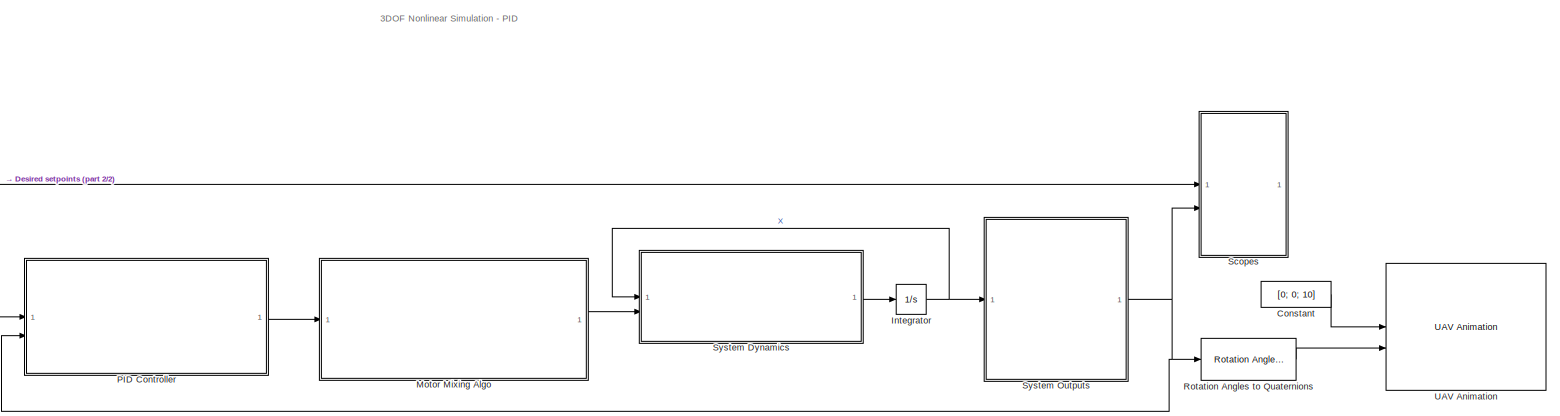
[diagram: root canvas - part 1/2, most of the canvas]
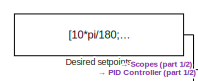
[diagram: root canvas - part 2/2, middle left region]
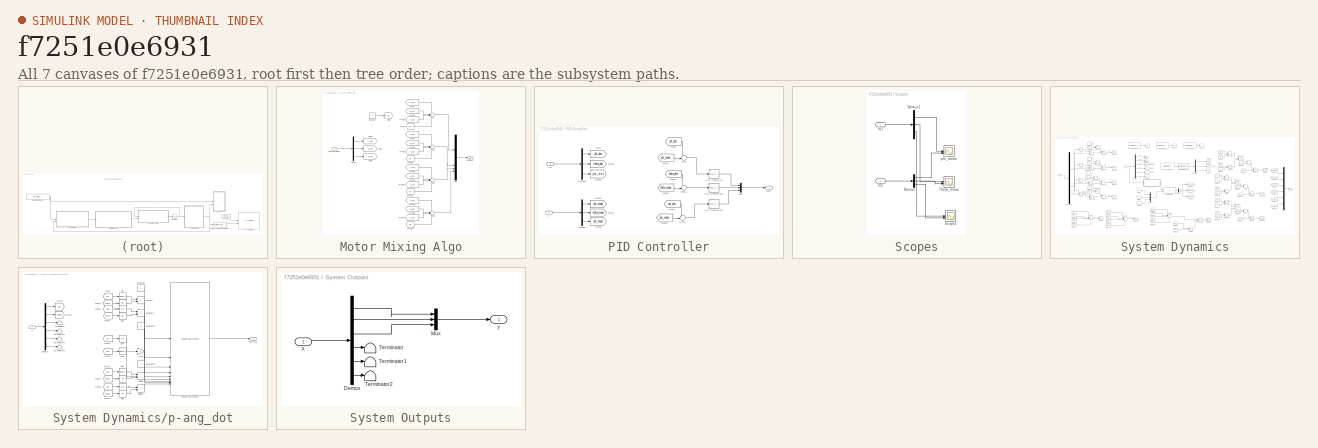
[diagram: thumbnail index - all 7 canvases of the model, root first then tree order]
MODEL slx_f7251e0e6931
KIND model
CONFIG AbsTol = auto
CONFIG EnableMultiTasking = on
CONFIG FixedStep = 0.001
CONFIG MaxStep = auto
CONFIG MinStep = auto
CONFIG RelTol = 1e-3
CONFIG SampleTimeConstraint = Unconstrained
CONFIG SolverName = ode1
CONFIG StartTime = 0.0
CONFIG StopTime = 30
BLOCK [Constant] Constant
  Value = [0; 0; 10]
BLOCK [Constant] Desired setpoints
  Value = [10*pi/180; 10*pi/180; 10*pi/180]
BLOCK [Integrator] Integrator
  InitialCondition = [0;0;0;0;0;0]
BLOCK [SubSystem] Motor Mixing Algo
BLOCK [Constant] Motor Mixing Algo/Constant
  Value = 0
BLOCK [Inport] Motor Mixing Algo/Controller Output
BLOCK [Demux] Motor Mixing Algo/Demux
  Outputs = 3
BLOCK [From] Motor Mixing Algo/From
  GotoTag = r_cnt
BLOCK [From] Motor Mixing Algo/From1
  GotoTag = p_cnt
BLOCK [From] Motor Mixing Algo/From10
  GotoTag = y_cnt
BLOCK [From] Motor Mixing Algo/From11
  GotoTag = uff
BLOCK [From] Motor Mixing Algo/From12
  GotoTag = y_cnt
BLOCK [From] Motor Mixing Algo/From13
  GotoTag = uff
BLOCK [From] Motor Mixing Algo/From14
  GotoTag = r_cnt
BLOCK [From] Motor Mixing Algo/From15
  GotoTag = p_cnt
BLOCK [From] Motor Mixing Algo/From2
  GotoTag = y_cnt
BLOCK [From] Motor Mixing Algo/From3
  GotoTag = uff
BLOCK [From] Motor Mixing Algo/From4
  GotoTag = r_cnt
BLOCK [From] Motor Mixing Algo/From5
  GotoTag = p_cnt
BLOCK [From] Motor Mixing Algo/From6
  GotoTag = y_cnt
BLOCK [From] Motor Mixing Algo/From7
  GotoTag = uff
BLOCK [From] Motor Mixing Algo/From8
  GotoTag = r_cnt
BLOCK [From] Motor Mixing Algo/From9
  GotoTag = p_cnt
BLOCK [Goto] Motor Mixing Algo/Goto
  GotoTag = uff
BLOCK [Goto] Motor Mixing Algo/Goto1
  GotoTag = r_cnt
BLOCK [Goto] Motor Mixing Algo/Goto2
  GotoTag = p_cnt
BLOCK [Goto] Motor Mixing Algo/Goto3
  GotoTag = y_cnt
BLOCK [Mux] Motor Mixing Algo/Mux
  DisplayOption = bar
BLOCK [Sum] Motor Mixing Algo/Sum
  Inputs = ++++
BLOCK [Sum] Motor Mixing Algo/Sum1
  Inputs = -+-+
BLOCK [Sum] Motor Mixing Algo/Sum2
  Inputs = --++
BLOCK [Sum] Motor Mixing Algo/Sum3
  Inputs = +--+
BLOCK [Outport] Motor Mixing Algo/plant input
BLOCK [SubSystem] PID Controller
BLOCK [Demux] PID Controller/Demux
  Outputs = 3
BLOCK [Demux] PID Controller/Demux1
  Outputs = 3
BLOCK [From] PID Controller/From
  GotoTag = phi_des
BLOCK [From] PID Controller/From1
  GotoTag = phi_meas
BLOCK [From] PID Controller/From2
  GotoTag = theta_des
BLOCK [From] PID Controller/From3
  GotoTag = theta_meas
BLOCK [From] PID Controller/From4
  GotoTag = psi_des
BLOCK [From] PID Controller/From5
  GotoTag = psi_meas
BLOCK [Goto] PID Controller/Goto
  GotoTag = phi_des
BLOCK [Goto] PID Controller/Goto1
  GotoTag = theta_des
BLOCK [Goto] PID Controller/Goto2
  GotoTag = psi_des
BLOCK [Goto] PID Controller/Goto3
  GotoTag = phi_meas
BLOCK [Goto] PID Controller/Goto4
  GotoTag = theta_meas
BLOCK [Goto] PID Controller/Goto5
  GotoTag = psi_meas
BLOCK [Mux] PID Controller/Mux
  DisplayOption = bar
  Inputs = 3
BLOCK [Outport] PID Controller/Out1
BLOCK [Reference] PID Controller/PID Controller  REF=slpidlib/PID Controller
  LibrarySourceBlock = simulink/Continuous/PID Controller
  SourceBlock = slpidlib/PID Controller
  SourceType = PID 1dof
BLOCK [Reference] PID Controller/PID Controller1  REF=slpidlib/PID Controller
  LibrarySourceBlock = simulink/Continuous/PID Controller
  SourceBlock = slpidlib/PID Controller
  SourceType = PID 1dof
BLOCK [Reference] PID Controller/PID Controller2  REF=slpidlib/PID Controller
  LibrarySourceBlock = simulink/Continuous/PID Controller
  SourceBlock = slpidlib/PID Controller
  SourceType = PID 1dof
BLOCK [Sum] PID Controller/Sum
  Inputs = +-|
BLOCK [Sum] PID Controller/Sum1
  Inputs = +-|
BLOCK [Sum] PID Controller/Sum2
  Inputs = +-|
BLOCK [Inport] PID Controller/Xd
BLOCK [Inport] PID Controller/y
  Port = 2
BLOCK [Reference] Rotation Angles to Quaternions  REF=sharedtransform/Rotation Angles to Quaternions
  AttributesFormatString = Rotation Order: %<rotationOrder>
  LibrarySourceBlock = aerolibtransform2/Rotation Angles to Quaternions
  SourceBlock = sharedtransform/Rotation Angles to Quaternions
  SourceType = Ang2Quat
BLOCK [SubSystem] Scopes
BLOCK [Demux] Scopes/Demux
  Outputs = 3
BLOCK [Demux] Scopes/Demux1
  Outputs = 3
BLOCK [Inport] Scopes/In1
BLOCK [Inport] Scopes/In2
  Port = 2
BLOCK [Scope] Scopes/Scope2
  Floating = off
  NumInputPorts = 2
  ScopeSpecificationString = Simulink.scopes.TimeScopeBlockCfg('CurrentConfiguration', extmgr.ConfigurationSet(extmgr.Configuration('Core','General UI',true),extmgr.Configuration('Core','Source UI',true),extmgr.Configuration('Sources','WiredSimulink',true,'DataLoggingVariableName','ScopeData2'),extmgr.Configuration('Visuals','Time Domain',true,'SerializedDisplays',{struct('MinYLimReal','-0.03565','MaxYLimReal','0.32087','YLab...<+1407ch>
BLOCK [Scope] Scopes/Theta_meas
  Floating = off
  NumInputPorts = 2
  ScopeSpecificationString = Simulink.scopes.TimeScopeBlockCfg('CurrentConfiguration', extmgr.ConfigurationSet(extmgr.Configuration('Core','General UI',true),extmgr.Configuration('Core','Source UI',true),extmgr.Configuration('Sources','WiredSimulink',true,'DataLoggingVariableName','ScopeData1'),extmgr.Configuration('Visuals','Time Domain',true,'SerializedDisplays',{struct('MinYLimReal','-0.04775','MaxYLimReal','0.42972','YLab...<+1406ch>
BLOCK [Scope] Scopes/phi_meas
  Floating = off
  NumInputPorts = 2
  ScopeSpecificationString = Simulink.scopes.TimeScopeBlockCfg('CurrentConfiguration', extmgr.ConfigurationSet(extmgr.Configuration('Core','General UI',true),extmgr.Configuration('Core','Source UI',true),extmgr.Configuration('Sources','WiredSimulink',true),extmgr.Configuration('Visuals','Time Domain',true,'SerializedDisplays',{struct('MinYLimReal','-0.06873','MaxYLimReal','0.46298','YLabelReal','','MinYLimMag','0.00000','MaxY...<+1367ch>
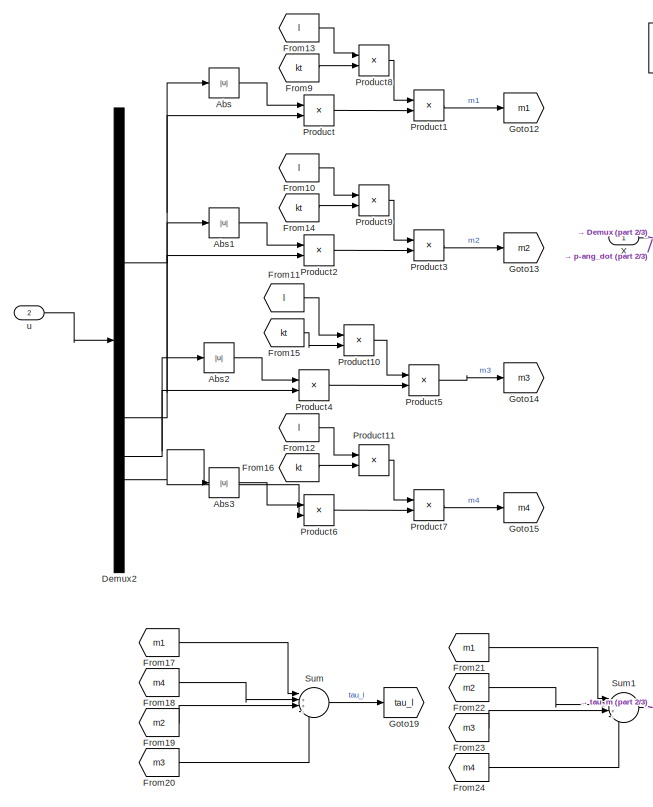
[diagram: System Dynamics - part 1/3, left side, full height]
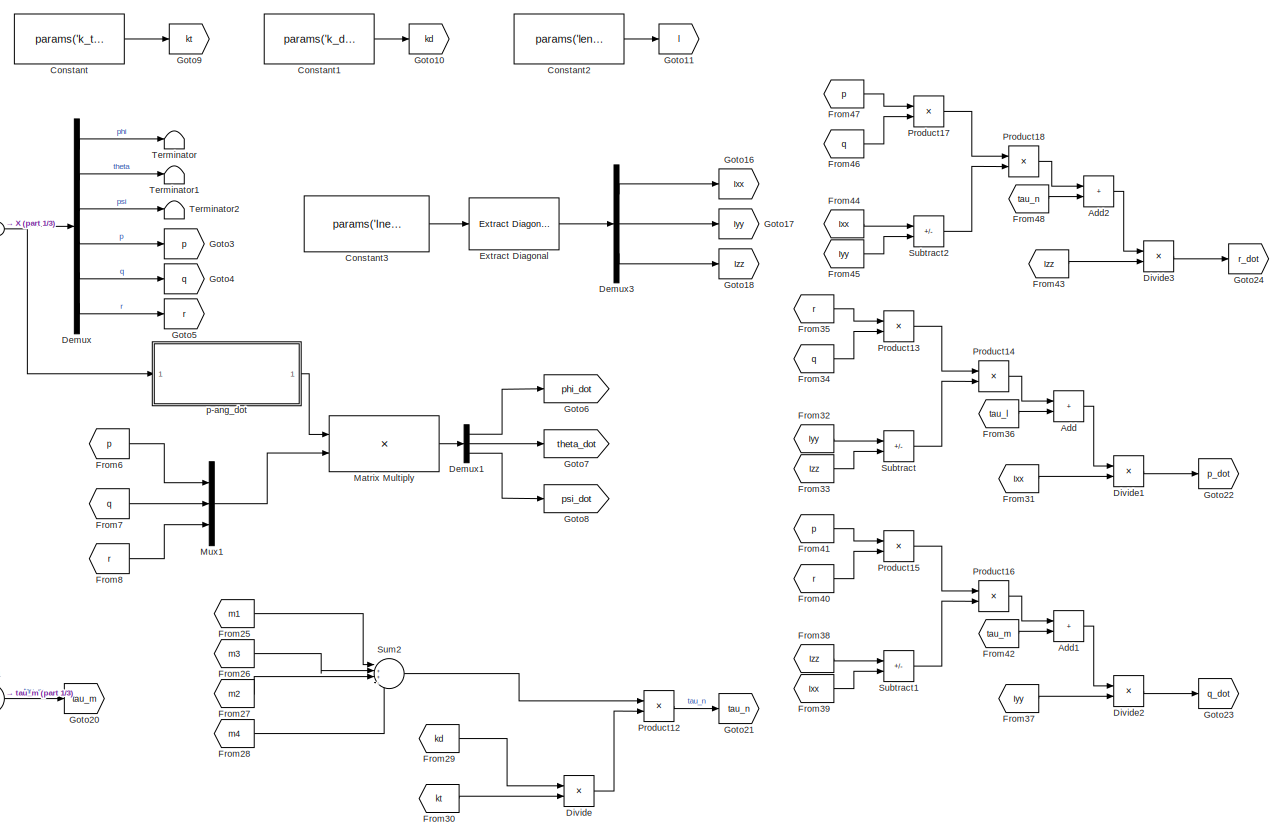
[diagram: System Dynamics - part 2/3, center side, full height]
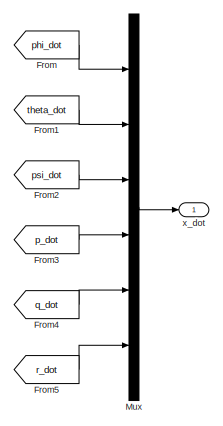
[diagram: System Dynamics - part 3/3, middle right region]
BLOCK [SubSystem] System Dynamics
BLOCK [Abs] System Dynamics/Abs
  SaturateOnIntegerOverflow = off
BLOCK [Abs] System Dynamics/Abs1
  SaturateOnIntegerOverflow = off
BLOCK [Abs] System Dynamics/Abs2
  SaturateOnIntegerOverflow = off
BLOCK [Abs] System Dynamics/Abs3
  SaturateOnIntegerOverflow = off
BLOCK [Sum] System Dynamics/Add
  IconShape = rectangular
BLOCK [Sum] System Dynamics/Add1
  IconShape = rectangular
BLOCK [Sum] System Dynamics/Add2
  IconShape = rectangular
BLOCK [Constant] System Dynamics/Constant
  Value = params('k_t')
BLOCK [Constant] System Dynamics/Constant1
  Value = params('k_d')
BLOCK [Constant] System Dynamics/Constant2
  Value = params('length')
BLOCK [Constant] System Dynamics/Constant3
  Value = params('Inertia')
BLOCK [Demux] System Dynamics/Demux
  Outputs = 6
BLOCK [Demux] System Dynamics/Demux1
  Outputs = 3
BLOCK [Demux] System Dynamics/Demux2
BLOCK [Demux] System Dynamics/Demux3
  Outputs = 3
BLOCK [Product] System Dynamics/Divide
  Inputs = */
BLOCK [Product] System Dynamics/Divide1
  Inputs = */
BLOCK [Product] System Dynamics/Divide2
  Inputs = */
BLOCK [Product] System Dynamics/Divide3
  Inputs = */
BLOCK [Reference] System Dynamics/Extract Diagonal  REF=matrix_library/Extract Diagonal
  LibrarySourceBlock = simulink/Matrix\nOperations/Extract Diagonal
  SourceBlock = matrix_library/Extract Diagonal
  SourceType = Extract Diagonal
BLOCK [From] System Dynamics/From
  GotoTag = phi_dot
BLOCK [From] System Dynamics/From1
  GotoTag = theta_dot
BLOCK [From] System Dynamics/From10
  GotoTag = l
BLOCK [From] System Dynamics/From11
  GotoTag = l
BLOCK [From] System Dynamics/From12
  GotoTag = l
BLOCK [From] System Dynamics/From13
  GotoTag = l
BLOCK [From] System Dynamics/From14
  GotoTag = kt
BLOCK [From] System Dynamics/From15
  GotoTag = kt
BLOCK [From] System Dynamics/From16
  GotoTag = kt
BLOCK [From] System Dynamics/From17
  GotoTag = m1
BLOCK [From] System Dynamics/From18
  GotoTag = m4
BLOCK [From] System Dynamics/From19
  GotoTag = m2
BLOCK [From] System Dynamics/From2
  GotoTag = psi_dot
BLOCK [From] System Dynamics/From20
  GotoTag = m3
BLOCK [From] System Dynamics/From21
  GotoTag = m1
BLOCK [From] System Dynamics/From22
  GotoTag = m2
BLOCK [From] System Dynamics/From23
  GotoTag = m3
BLOCK [From] System Dynamics/From24
  GotoTag = m4
BLOCK [From] System Dynamics/From25
  GotoTag = m1
BLOCK [From] System Dynamics/From26
  GotoTag = m3
BLOCK [From] System Dynamics/From27
  GotoTag = m2
BLOCK [From] System Dynamics/From28
  GotoTag = m4
BLOCK [From] System Dynamics/From29
  GotoTag = kd
BLOCK [From] System Dynamics/From3
  GotoTag = p_dot
BLOCK [From] System Dynamics/From30
  GotoTag = kt
BLOCK [From] System Dynamics/From31
  GotoTag = Ixx
BLOCK [From] System Dynamics/From32
  GotoTag = Iyy
BLOCK [From] System Dynamics/From33
  GotoTag = Izz
BLOCK [From] System Dynamics/From34
  GotoTag = q
BLOCK [From] System Dynamics/From35
  GotoTag = r
BLOCK [From] System Dynamics/From36
  GotoTag = tau_l
BLOCK [From] System Dynamics/From37
  GotoTag = Iyy
BLOCK [From] System Dynamics/From38
  GotoTag = Izz
BLOCK [From] System Dynamics/From39
  GotoTag = Ixx
BLOCK [From] System Dynamics/From4
  GotoTag = q_dot
BLOCK [From] System Dynamics/From40
  GotoTag = r
BLOCK [From] System Dynamics/From41
  GotoTag = p
BLOCK [From] System Dynamics/From42
  GotoTag = tau_m
BLOCK [From] System Dynamics/From43
  GotoTag = Izz
BLOCK [From] System Dynamics/From44
  GotoTag = Ixx
BLOCK [From] System Dynamics/From45
  GotoTag = Iyy
BLOCK [From] System Dynamics/From46
  GotoTag = q
BLOCK [From] System Dynamics/From47
  GotoTag = p
BLOCK [From] System Dynamics/From48
  GotoTag = tau_n
BLOCK [From] System Dynamics/From5
  GotoTag = r_dot
BLOCK [From] System Dynamics/From6
  GotoTag = p
BLOCK [From] System Dynamics/From7
  GotoTag = q
BLOCK [From] System Dynamics/From8
  GotoTag = r
BLOCK [From] System Dynamics/From9
  GotoTag = kt
BLOCK [Goto] System Dynamics/Goto10
  GotoTag = kd
BLOCK [Goto] System Dynamics/Goto11
  GotoTag = l
BLOCK [Goto] System Dynamics/Goto12
  GotoTag = m1
BLOCK [Goto] System Dynamics/Goto13
  GotoTag = m2
BLOCK [Goto] System Dynamics/Goto14
  GotoTag = m3
BLOCK [Goto] System Dynamics/Goto15
  GotoTag = m4
BLOCK [Goto] System Dynamics/Goto16
  GotoTag = Ixx
BLOCK [Goto] System Dynamics/Goto17
  GotoTag = Iyy
BLOCK [Goto] System Dynamics/Goto18
  GotoTag = Izz
BLOCK [Goto] System Dynamics/Goto19
  GotoTag = tau_l
BLOCK [Goto] System Dynamics/Goto20
  GotoTag = tau_m
BLOCK [Goto] System Dynamics/Goto21
  GotoTag = tau_n
BLOCK [Goto] System Dynamics/Goto22
  GotoTag = p_dot
BLOCK [Goto] System Dynamics/Goto23
  GotoTag = q_dot
BLOCK [Goto] System Dynamics/Goto24
  GotoTag = r_dot
BLOCK [Goto] System Dynamics/Goto3
  GotoTag = p
BLOCK [Goto] System Dynamics/Goto4
  GotoTag = q
BLOCK [Goto] System Dynamics/Goto5
  GotoTag = r
BLOCK [Goto] System Dynamics/Goto6
  GotoTag = phi_dot
BLOCK [Goto] System Dynamics/Goto7
  GotoTag = theta_dot
BLOCK [Goto] System Dynamics/Goto8
  GotoTag = psi_dot
BLOCK [Goto] System Dynamics/Goto9
  GotoTag = kt
BLOCK [Product] System Dynamics/Matrix Multiply
  Multiplication = Matrix(*)
BLOCK [Mux] System Dynamics/Mux
  DisplayOption = bar
  Inputs = 6
BLOCK [Mux] System Dynamics/Mux1
  DisplayOption = bar
  Inputs = 3
BLOCK [Product] System Dynamics/Product
BLOCK [Product] System Dynamics/Product1
BLOCK [Product] System Dynamics/Product10
BLOCK [Product] System Dynamics/Product11
BLOCK [Product] System Dynamics/Product12
BLOCK [Product] System Dynamics/Product13
BLOCK [Product] System Dynamics/Product14
BLOCK [Product] System Dynamics/Product15
BLOCK [Product] System Dynamics/Product16
BLOCK [Product] System Dynamics/Product17
BLOCK [Product] System Dynamics/Product18
BLOCK [Product] System Dynamics/Product2
BLOCK [Product] System Dynamics/Product3
BLOCK [Product] System Dynamics/Product4
BLOCK [Product] System Dynamics/Product5
BLOCK [Product] System Dynamics/Product6
BLOCK [Product] System Dynamics/Product7
BLOCK [Product] System Dynamics/Product8
BLOCK [Product] System Dynamics/Product9
BLOCK [Sum] System Dynamics/Subtract
  IconShape = rectangular
  Inputs = +-
BLOCK [Sum] System Dynamics/Subtract1
  IconShape = rectangular
  Inputs = +-
BLOCK [Sum] System Dynamics/Subtract2
  IconShape = rectangular
  Inputs = +-
BLOCK [Sum] System Dynamics/Sum
  Inputs = |++--
BLOCK [Sum] System Dynamics/Sum1
  Inputs = |++--
BLOCK [Sum] System Dynamics/Sum2
  Inputs = |++--
BLOCK [Terminator] System Dynamics/Terminator
BLOCK [Terminator] System Dynamics/Terminator1
BLOCK [Terminator] System Dynamics/Terminator2
BLOCK [Inport] System Dynamics/X
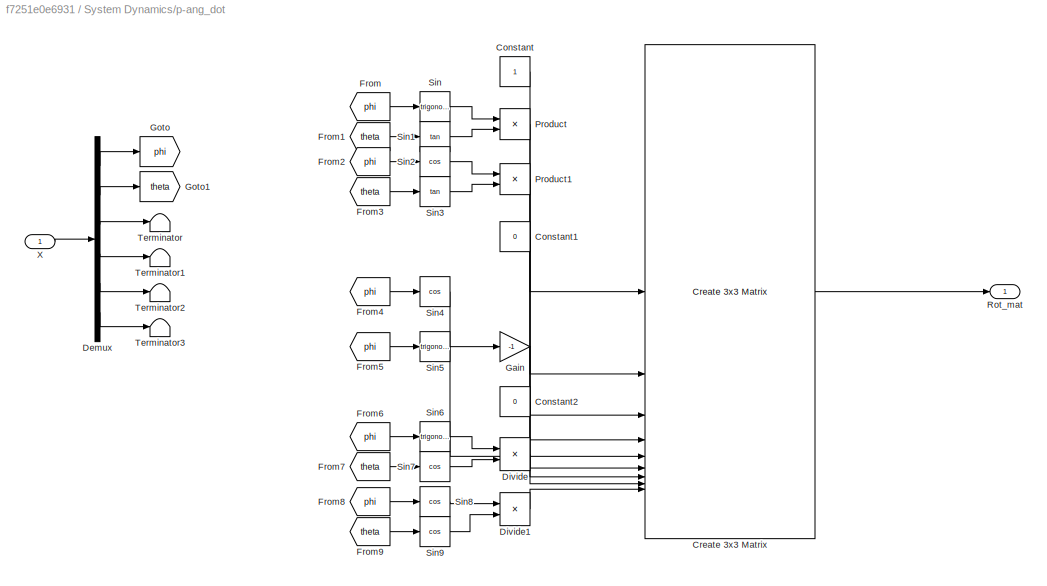
BLOCK [SubSystem] System Dynamics/p-ang_dot
BLOCK [Constant] System Dynamics/p-ang_dot/Constant
BLOCK [Constant] System Dynamics/p-ang_dot/Constant1
  Value = 0
BLOCK [Constant] System Dynamics/p-ang_dot/Constant2
  Value = 0
BLOCK [Reference] System Dynamics/p-ang_dot/Create 3x3 Matrix  REF=sharedutil/Create 3x3 Matrix
  LibrarySourceBlock = aerolibutil/Create 3x3 Matrix
  SourceBlock = sharedutil/Create 3x3 Matrix
  SourceType = Create 3x3 Matrix
BLOCK [Demux] System Dynamics/p-ang_dot/Demux
  Outputs = 6
BLOCK [Product] System Dynamics/p-ang_dot/Divide
  Inputs = */
  RndMeth = Zero
  SaturateOnIntegerOverflow = on
BLOCK [Product] System Dynamics/p-ang_dot/Divide1
  Inputs = */
  RndMeth = Zero
  SaturateOnIntegerOverflow = on
BLOCK [From] System Dynamics/p-ang_dot/From
  GotoTag = phi
BLOCK [From] System Dynamics/p-ang_dot/From1
  GotoTag = theta
BLOCK [From] System Dynamics/p-ang_dot/From2
  GotoTag = phi
BLOCK [From] System Dynamics/p-ang_dot/From3
  GotoTag = theta
BLOCK [From] System Dynamics/p-ang_dot/From4
  GotoTag = phi
BLOCK [From] System Dynamics/p-ang_dot/From5
  GotoTag = phi
BLOCK [From] System Dynamics/p-ang_dot/From6
  GotoTag = phi
BLOCK [From] System Dynamics/p-ang_dot/From7
  GotoTag = theta
BLOCK [From] System Dynamics/p-ang_dot/From8
  GotoTag = phi
BLOCK [From] System Dynamics/p-ang_dot/From9
  GotoTag = theta
BLOCK [Gain] System Dynamics/p-ang_dot/Gain
  Gain = -1
BLOCK [Goto] System Dynamics/p-ang_dot/Goto
  GotoTag = phi
BLOCK [Goto] System Dynamics/p-ang_dot/Goto1
  GotoTag = theta
BLOCK [Product] System Dynamics/p-ang_dot/Product
BLOCK [Product] System Dynamics/p-ang_dot/Product1
BLOCK [Outport] System Dynamics/p-ang_dot/Rot_mat
BLOCK [Trigonometry] System Dynamics/p-ang_dot/Sin
BLOCK [Trigonometry] System Dynamics/p-ang_dot/Sin1
  Operator = tan
BLOCK [Trigonometry] System Dynamics/p-ang_dot/Sin2
  Operator = cos
BLOCK [Trigonometry] System Dynamics/p-ang_dot/Sin3
  Operator = tan
BLOCK [Trigonometry] System Dynamics/p-ang_dot/Sin4
  Operator = cos
BLOCK [Trigonometry] System Dynamics/p-ang_dot/Sin5
BLOCK [Trigonometry] System Dynamics/p-ang_dot/Sin6
BLOCK [Trigonometry] System Dynamics/p-ang_dot/Sin7
  Operator = cos
BLOCK [Trigonometry] System Dynamics/p-ang_dot/Sin8
  Operator = cos
BLOCK [Trigonometry] System Dynamics/p-ang_dot/Sin9
  Operator = cos
BLOCK [Terminator] System Dynamics/p-ang_dot/Terminator
BLOCK [Terminator] System Dynamics/p-ang_dot/Terminator1
BLOCK [Terminator] System Dynamics/p-ang_dot/Terminator2
BLOCK [Terminator] System Dynamics/p-ang_dot/Terminator3
BLOCK [Inport] System Dynamics/p-ang_dot/X
BLOCK [Inport] System Dynamics/u
  Port = 2
BLOCK [Outport] System Dynamics/x_dot
BLOCK [SubSystem] System Outputs
BLOCK [Demux] System Outputs/Demux
  Outputs = 6
BLOCK [Mux] System Outputs/Mux
  DisplayOption = bar
  Inputs = 3
BLOCK [Terminator] System Outputs/Terminator
BLOCK [Terminator] System Outputs/Terminator1
BLOCK [Terminator] System Outputs/Terminator2
BLOCK [Inport] System Outputs/X
BLOCK [Outport] System Outputs/y
BLOCK [Reference] UAV Animation  REF=uavutilslib/UAV Animation
  SourceBlock = uavutilslib/UAV Animation
  SourceType = uav.sluav.internal.system.UAVAnimation
ANNOTATION (root): 3DOF Nonlinear Simulation - PID
LINE Constant:1 -> UAV Animation:1
NET Desired setpoints:1 -> PID Controller:1, Scopes:1
NET Integrator:1 -> System Dynamics:1, System Outputs:1
LINE Motor Mixing Algo/Constant:1 -> Motor Mixing Algo/Goto:1
LINE Motor Mixing Algo/Controller Output:1 -> Motor Mixing Algo/Demux:1
LINE Motor Mixing Algo/Demux:1 -> Motor Mixing Algo/Goto1:1
LINE Motor Mixing Algo/Demux:2 -> Motor Mixing Algo/Goto2:1
LINE Motor Mixing Algo/Demux:3 -> Motor Mixing Algo/Goto3:1
LINE Motor Mixing Algo/From10:1 -> Motor Mixing Algo/Sum2:3
LINE Motor Mixing Algo/From11:1 -> Motor Mixing Algo/Sum2:4
LINE Motor Mixing Algo/From12:1 -> Motor Mixing Algo/Sum3:3
LINE Motor Mixing Algo/From13:1 -> Motor Mixing Algo/Sum3:4
LINE Motor Mixing Algo/From14:1 -> Motor Mixing Algo/Sum3:1
LINE Motor Mixing Algo/From15:1 -> Motor Mixing Algo/Sum3:2
LINE Motor Mixing Algo/From1:1 -> Motor Mixing Algo/Sum:2
LINE Motor Mixing Algo/From2:1 -> Motor Mixing Algo/Sum:3
LINE Motor Mixing Algo/From3:1 -> Motor Mixing Algo/Sum:4
LINE Motor Mixing Algo/From4:1 -> Motor Mixing Algo/Sum1:1
LINE Motor Mixing Algo/From5:1 -> Motor Mixing Algo/Sum1:2
LINE Motor Mixing Algo/From6:1 -> Motor Mixing Algo/Sum1:3
LINE Motor Mixing Algo/From7:1 -> Motor Mixing Algo/Sum1:4
LINE Motor Mixing Algo/From8:1 -> Motor Mixing Algo/Sum2:1
LINE Motor Mixing Algo/From9:1 -> Motor Mixing Algo/Sum2:2
LINE Motor Mixing Algo/From:1 -> Motor Mixing Algo/Sum:1
LINE Motor Mixing Algo/Mux:1 -> Motor Mixing Algo/plant input:1
LINE Motor Mixing Algo/Sum1:1 -> Motor Mixing Algo/Mux:2
LINE Motor Mixing Algo/Sum2:1 -> Motor Mixing Algo/Mux:3
LINE Motor Mixing Algo/Sum3:1 -> Motor Mixing Algo/Mux:4
LINE Motor Mixing Algo/Sum:1 -> Motor Mixing Algo/Mux:1
LINE Motor Mixing Algo:1 -> System Dynamics:2
LINE PID Controller/Demux1:1 -> PID Controller/Goto:1
LINE PID Controller/Demux1:2 -> PID Controller/Goto1:1
LINE PID Controller/Demux1:3 -> PID Controller/Goto2:1
LINE PID Controller/Demux:1 -> PID Controller/Goto3:1
LINE PID Controller/Demux:2 -> PID Controller/Goto4:1
LINE PID Controller/Demux:3 -> PID Controller/Goto5:1
LINE PID Controller/From1:1 -> PID Controller/Sum:2
LINE PID Controller/From2:1 -> PID Controller/Sum1:1
LINE PID Controller/From3:1 -> PID Controller/Sum1:2
LINE PID Controller/From4:1 -> PID Controller/Sum2:1
LINE PID Controller/From5:1 -> PID Controller/Sum2:2
LINE PID Controller/From:1 -> PID Controller/Sum:1
LINE PID Controller/Mux:1 -> PID Controller/Out1:1
LINE PID Controller/PID Controller1:1 -> PID Controller/Mux:2
LINE PID Controller/PID Controller2:1 -> PID Controller/Mux:3
LINE PID Controller/PID Controller:1 -> PID Controller/Mux:1
LINE PID Controller/Sum1:1 -> PID Controller/PID Controller1:1
LINE PID Controller/Sum2:1 -> PID Controller/PID Controller2:1
LINE PID Controller/Sum:1 -> PID Controller/PID Controller:1
LINE PID Controller/Xd:1 -> PID Controller/Demux1:1
LINE PID Controller/y:1 -> PID Controller/Demux:1
LINE PID Controller:1 -> Motor Mixing Algo:1
LINE Rotation Angles to Quaternions:1 -> UAV Animation:2
LINE Scopes/Demux1:1 -> Scopes/phi_meas:1
LINE Scopes/Demux1:2 -> Scopes/Theta_meas:1
LINE Scopes/Demux1:3 -> Scopes/Scope2:1
LINE Scopes/Demux:1 -> Scopes/phi_meas:2
LINE Scopes/Demux:2 -> Scopes/Theta_meas:2
LINE Scopes/Demux:3 -> Scopes/Scope2:2
LINE Scopes/In1:1 -> Scopes/Demux1:1
LINE Scopes/In2:1 -> Scopes/Demux:1
LINE System Dynamics/Abs1:1 -> System Dynamics/Product2:1
LINE System Dynamics/Abs2:1 -> System Dynamics/Product4:1
LINE System Dynamics/Abs3:1 -> System Dynamics/Product6:1
LINE System Dynamics/Abs:1 -> System Dynamics/Product:1
LINE System Dynamics/Add1:1 -> System Dynamics/Divide2:1
LINE System Dynamics/Add2:1 -> System Dynamics/Divide3:1
LINE System Dynamics/Add:1 -> System Dynamics/Divide1:1
LINE System Dynamics/Constant1:1 -> System Dynamics/Goto10:1
LINE System Dynamics/Constant2:1 -> System Dynamics/Goto11:1
LINE System Dynamics/Constant3:1 -> System Dynamics/Extract Diagonal:1
LINE System Dynamics/Constant:1 -> System Dynamics/Goto9:1
LINE System Dynamics/Demux1:1 -> System Dynamics/Goto6:1
LINE System Dynamics/Demux1:2 -> System Dynamics/Goto7:1
LINE System Dynamics/Demux1:3 -> System Dynamics/Goto8:1
NET System Dynamics/Demux2:1 -> System Dynamics/Abs:1, System Dynamics/Product:2
NET System Dynamics/Demux2:2 -> System Dynamics/Abs1:1, System Dynamics/Product2:2
NET System Dynamics/Demux2:3 -> System Dynamics/Abs2:1, System Dynamics/Product4:2
NET System Dynamics/Demux2:4 -> System Dynamics/Abs3:1, System Dynamics/Product6:2
LINE System Dynamics/Demux3:1 -> System Dynamics/Goto16:1
LINE System Dynamics/Demux3:2 -> System Dynamics/Goto17:1
LINE System Dynamics/Demux3:3 -> System Dynamics/Goto18:1
LINE System Dynamics/Demux:1 -> System Dynamics/Terminator:1
LINE System Dynamics/Demux:2 -> System Dynamics/Terminator1:1
LINE System Dynamics/Demux:3 -> System Dynamics/Terminator2:1
LINE System Dynamics/Demux:4 -> System Dynamics/Goto3:1
LINE System Dynamics/Demux:5 -> System Dynamics/Goto4:1
LINE System Dynamics/Demux:6 -> System Dynamics/Goto5:1
LINE System Dynamics/Divide1:1 -> System Dynamics/Goto22:1
LINE System Dynamics/Divide2:1 -> System Dynamics/Goto23:1
LINE System Dynamics/Divide3:1 -> System Dynamics/Goto24:1
LINE System Dynamics/Divide:1 -> System Dynamics/Product12:2
LINE System Dynamics/Extract Diagonal:1 -> System Dynamics/Demux3:1
LINE System Dynamics/From10:1 -> System Dynamics/Product9:1
LINE System Dynamics/From11:1 -> System Dynamics/Product10:1
LINE System Dynamics/From12:1 -> System Dynamics/Product11:1
LINE System Dynamics/From13:1 -> System Dynamics/Product8:1
LINE System Dynamics/From14:1 -> System Dynamics/Product9:2
LINE System Dynamics/From15:1 -> System Dynamics/Product10:2
LINE System Dynamics/From16:1 -> System Dynamics/Product11:2
LINE System Dynamics/From17:1 -> System Dynamics/Sum:1
LINE System Dynamics/From18:1 -> System Dynamics/Sum:2
LINE System Dynamics/From19:1 -> System Dynamics/Sum:3
LINE System Dynamics/From1:1 -> System Dynamics/Mux:2
LINE System Dynamics/From20:1 -> System Dynamics/Sum:4
LINE System Dynamics/From21:1 -> System Dynamics/Sum1:1
LINE System Dynamics/From22:1 -> System Dynamics/Sum1:2
LINE System Dynamics/From23:1 -> System Dynamics/Sum1:3
LINE System Dynamics/From24:1 -> System Dynamics/Sum1:4
LINE System Dynamics/From25:1 -> System Dynamics/Sum2:1
LINE System Dynamics/From26:1 -> System Dynamics/Sum2:2
LINE System Dynamics/From27:1 -> System Dynamics/Sum2:3
LINE System Dynamics/From28:1 -> System Dynamics/Sum2:4
LINE System Dynamics/From29:1 -> System Dynamics/Divide:1
LINE System Dynamics/From2:1 -> System Dynamics/Mux:3
LINE System Dynamics/From30:1 -> System Dynamics/Divide:2
LINE System Dynamics/From31:1 -> System Dynamics/Divide1:2
LINE System Dynamics/From32:1 -> System Dynamics/Subtract:1
LINE System Dynamics/From33:1 -> System Dynamics/Subtract:2
LINE System Dynamics/From34:1 -> System Dynamics/Product13:2
LINE System Dynamics/From35:1 -> System Dynamics/Product13:1
LINE System Dynamics/From36:1 -> System Dynamics/Add:2
LINE System Dynamics/From37:1 -> System Dynamics/Divide2:2
LINE System Dynamics/From38:1 -> System Dynamics/Subtract1:1
LINE System Dynamics/From39:1 -> System Dynamics/Subtract1:2
LINE System Dynamics/From3:1 -> System Dynamics/Mux:4
LINE System Dynamics/From40:1 -> System Dynamics/Product15:2
LINE System Dynamics/From41:1 -> System Dynamics/Product15:1
LINE System Dynamics/From42:1 -> System Dynamics/Add1:2
LINE System Dynamics/From43:1 -> System Dynamics/Divide3:2
LINE System Dynamics/From44:1 -> System Dynamics/Subtract2:1
LINE System Dynamics/From45:1 -> System Dynamics/Subtract2:2
LINE System Dynamics/From46:1 -> System Dynamics/Product17:2
LINE System Dynamics/From47:1 -> System Dynamics/Product17:1
LINE System Dynamics/From48:1 -> System Dynamics/Add2:2
LINE System Dynamics/From4:1 -> System Dynamics/Mux:5
LINE System Dynamics/From5:1 -> System Dynamics/Mux:6
LINE System Dynamics/From6:1 -> System Dynamics/Mux1:1
LINE System Dynamics/From7:1 -> System Dynamics/Mux1:2
LINE System Dynamics/From8:1 -> System Dynamics/Mux1:3
LINE System Dynamics/From9:1 -> System Dynamics/Product8:2
LINE System Dynamics/From:1 -> System Dynamics/Mux:1
LINE System Dynamics/Matrix Multiply:1 -> System Dynamics/Demux1:1
LINE System Dynamics/Mux1:1 -> System Dynamics/Matrix Multiply:2
LINE System Dynamics/Mux:1 -> System Dynamics/x_dot:1
LINE System Dynamics/Product10:1 -> System Dynamics/Product5:1
LINE System Dynamics/Product11:1 -> System Dynamics/Product7:1
LINE System Dynamics/Product12:1 -> System Dynamics/Goto21:1
LINE System Dynamics/Product13:1 -> System Dynamics/Product14:1
LINE System Dynamics/Product14:1 -> System Dynamics/Add:1
LINE System Dynamics/Product15:1 -> System Dynamics/Product16:1
LINE System Dynamics/Product16:1 -> System Dynamics/Add1:1
LINE System Dynamics/Product17:1 -> System Dynamics/Product18:1
LINE System Dynamics/Product18:1 -> System Dynamics/Add2:1
LINE System Dynamics/Product1:1 -> System Dynamics/Goto12:1
LINE System Dynamics/Product2:1 -> System Dynamics/Product3:2
LINE System Dynamics/Product3:1 -> System Dynamics/Goto13:1
LINE System Dynamics/Product4:1 -> System Dynamics/Product5:2
LINE System Dynamics/Product5:1 -> System Dynamics/Goto14:1
LINE System Dynamics/Product6:1 -> System Dynamics/Product7:2
LINE System Dynamics/Product7:1 -> System Dynamics/Goto15:1
LINE System Dynamics/Product8:1 -> System Dynamics/Product1:1
LINE System Dynamics/Product9:1 -> System Dynamics/Product3:1
LINE System Dynamics/Product:1 -> System Dynamics/Product1:2
LINE System Dynamics/Subtract1:1 -> System Dynamics/Product16:2
LINE System Dynamics/Subtract2:1 -> System Dynamics/Product18:2
LINE System Dynamics/Subtract:1 -> System Dynamics/Product14:2
LINE System Dynamics/Sum1:1 -> System Dynamics/Goto20:1
LINE System Dynamics/Sum2:1 -> System Dynamics/Product12:1
LINE System Dynamics/Sum:1 -> System Dynamics/Goto19:1
NET System Dynamics/X:1 -> System Dynamics/Demux:1, System Dynamics/p-ang_dot:1
LINE System Dynamics/p-ang_dot/Constant1:1 -> System Dynamics/p-ang_dot/Create 3x3 Matrix:4
LINE System Dynamics/p-ang_dot/Constant2:1 -> System Dynamics/p-ang_dot/Create 3x3 Matrix:7
LINE System Dynamics/p-ang_dot/Constant:1 -> System Dynamics/p-ang_dot/Create 3x3 Matrix:1
LINE System Dynamics/p-ang_dot/Create 3x3 Matrix:1 -> System Dynamics/p-ang_dot/Rot_mat:1
LINE System Dynamics/p-ang_dot/Demux:1 -> System Dynamics/p-ang_dot/Goto:1
LINE System Dynamics/p-ang_dot/Demux:2 -> System Dynamics/p-ang_dot/Goto1:1
LINE System Dynamics/p-ang_dot/Demux:3 -> System Dynamics/p-ang_dot/Terminator:1
LINE System Dynamics/p-ang_dot/Demux:4 -> System Dynamics/p-ang_dot/Terminator1:1
LINE System Dynamics/p-ang_dot/Demux:5 -> System Dynamics/p-ang_dot/Terminator2:1
LINE System Dynamics/p-ang_dot/Demux:6 -> System Dynamics/p-ang_dot/Terminator3:1
LINE System Dynamics/p-ang_dot/Divide1:1 -> System Dynamics/p-ang_dot/Create 3x3 Matrix:9
LINE System Dynamics/p-ang_dot/Divide:1 -> System Dynamics/p-ang_dot/Create 3x3 Matrix:8
LINE System Dynamics/p-ang_dot/From1:1 -> System Dynamics/p-ang_dot/Sin1:1
LINE System Dynamics/p-ang_dot/From2:1 -> System Dynamics/p-ang_dot/Sin2:1
LINE System Dynamics/p-ang_dot/From3:1 -> System Dynamics/p-ang_dot/Sin3:1
LINE System Dynamics/p-ang_dot/From4:1 -> System Dynamics/p-ang_dot/Sin4:1
LINE System Dynamics/p-ang_dot/From5:1 -> System Dynamics/p-ang_dot/Sin5:1
LINE System Dynamics/p-ang_dot/From6:1 -> System Dynamics/p-ang_dot/Sin6:1
LINE System Dynamics/p-ang_dot/From7:1 -> System Dynamics/p-ang_dot/Sin7:1
LINE System Dynamics/p-ang_dot/From8:1 -> System Dynamics/p-ang_dot/Sin8:1
LINE System Dynamics/p-ang_dot/From9:1 -> System Dynamics/p-ang_dot/Sin9:1
LINE System Dynamics/p-ang_dot/From:1 -> System Dynamics/p-ang_dot/Sin:1
LINE System Dynamics/p-ang_dot/Gain:1 -> System Dynamics/p-ang_dot/Create 3x3 Matrix:6
LINE System Dynamics/p-ang_dot/Product1:1 -> System Dynamics/p-ang_dot/Create 3x3 Matrix:3
LINE System Dynamics/p-ang_dot/Product:1 -> System Dynamics/p-ang_dot/Create 3x3 Matrix:2
LINE System Dynamics/p-ang_dot/Sin1:1 -> System Dynamics/p-ang_dot/Product:2
LINE System Dynamics/p-ang_dot/Sin2:1 -> System Dynamics/p-ang_dot/Product1:1
LINE System Dynamics/p-ang_dot/Sin3:1 -> System Dynamics/p-ang_dot/Product1:2
LINE System Dynamics/p-ang_dot/Sin4:1 -> System Dynamics/p-ang_dot/Create 3x3 Matrix:5
LINE System Dynamics/p-ang_dot/Sin5:1 -> System Dynamics/p-ang_dot/Gain:1
LINE System Dynamics/p-ang_dot/Sin6:1 -> System Dynamics/p-ang_dot/Divide:1
LINE System Dynamics/p-ang_dot/Sin7:1 -> System Dynamics/p-ang_dot/Divide:2
LINE System Dynamics/p-ang_dot/Sin8:1 -> System Dynamics/p-ang_dot/Divide1:1
LINE System Dynamics/p-ang_dot/Sin9:1 -> System Dynamics/p-ang_dot/Divide1:2
LINE System Dynamics/p-ang_dot/Sin:1 -> System Dynamics/p-ang_dot/Product:1
LINE System Dynamics/p-ang_dot/X:1 -> System Dynamics/p-ang_dot/Demux:1
LINE System Dynamics/p-ang_dot:1 -> System Dynamics/Matrix Multiply:1
LINE System Dynamics/u:1 -> System Dynamics/Demux2:1
LINE System Dynamics:1 -> Integrator:1
LINE System Outputs/Demux:1 -> System Outputs/Mux:1
LINE System Outputs/Demux:2 -> System Outputs/Mux:2
LINE System Outputs/Demux:3 -> System Outputs/Mux:3
LINE System Outputs/Demux:4 -> System Outputs/Terminator:1
LINE System Outputs/Demux:5 -> System Outputs/Terminator1:1
LINE System Outputs/Demux:6 -> System Outputs/Terminator2:1
LINE System Outputs/Mux:1 -> System Outputs/y:1
LINE System Outputs/X:1 -> System Outputs/Demux:1
NET System Outputs:1 -> PID Controller:2, Rotation Angles to Quaternions:1, Scopes:2
note: NET lines group one-source signal fan-out (src -> all destinations, sorted); 1:1 wires keep LINE
